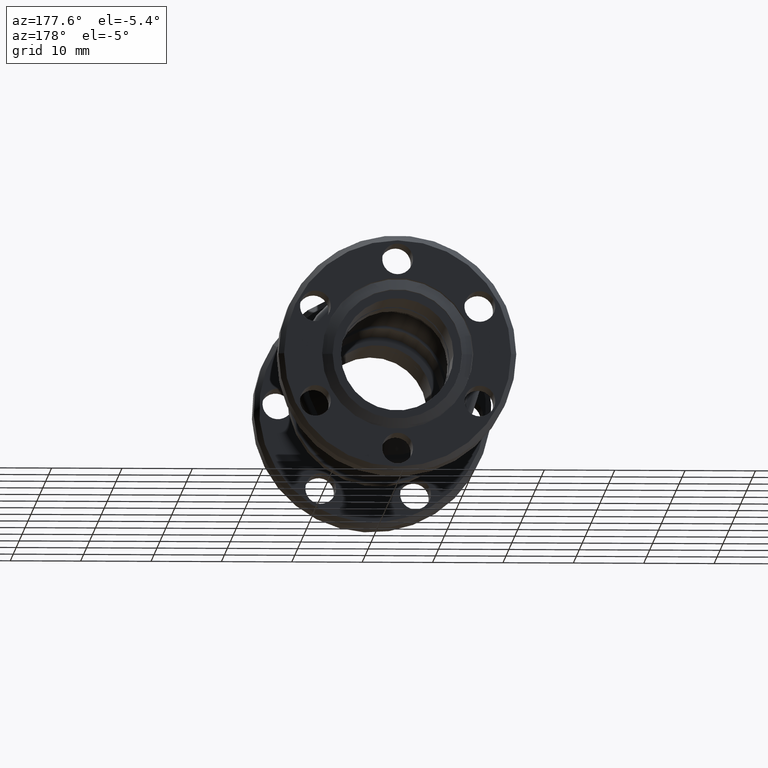
[diagram: clean part render]
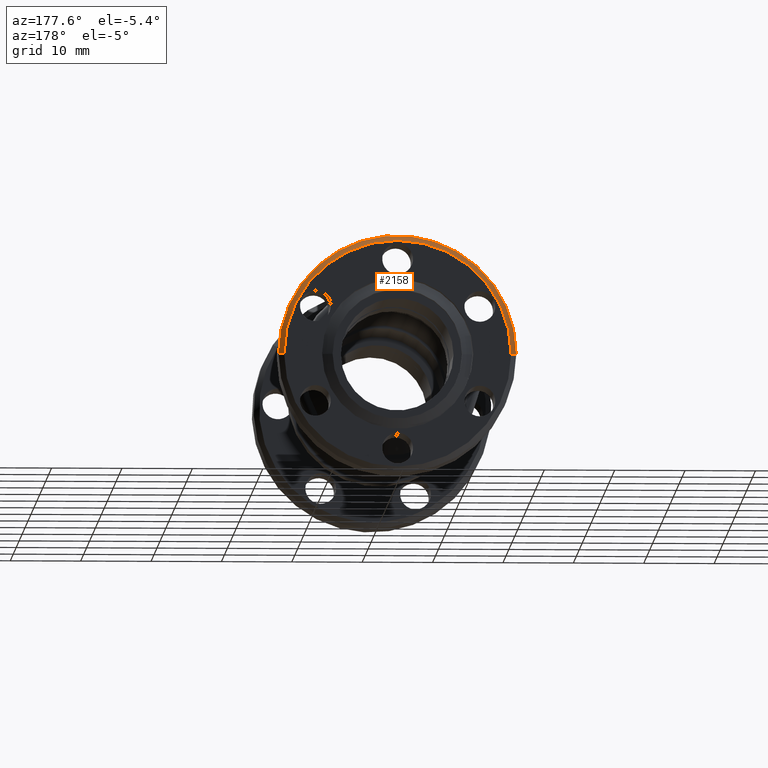
[diagram: same view with one face highlighted and labeled with its STEP entity id]
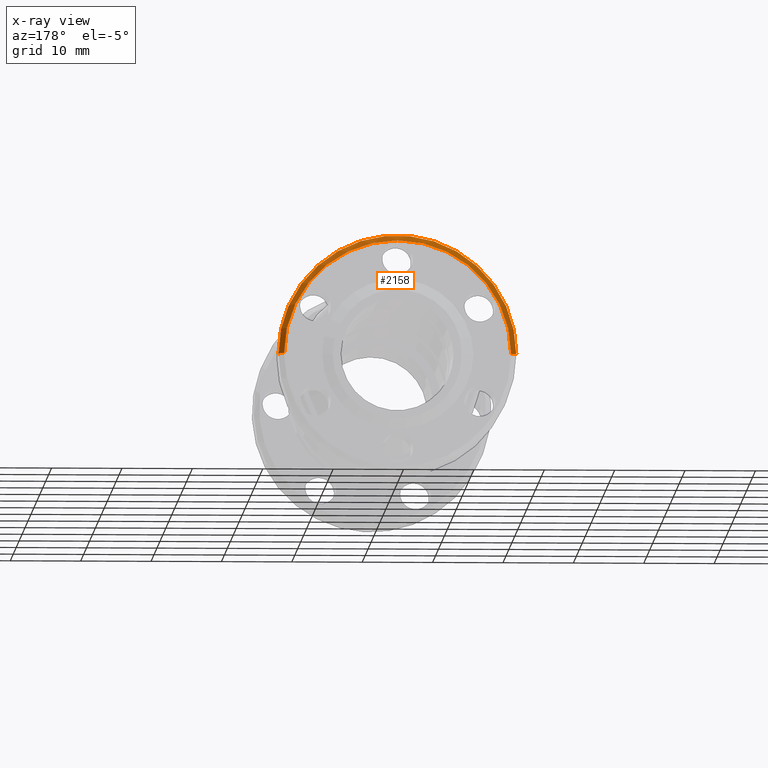
[diagram: x-ray of the same camera — body ghosted, the highlighted face saturated]
A machine part, auxiliary view. The second image highlights one B-rep face of the part: STEP entity #2158.
The next image is the same camera in x-ray: the body ghosted, the highlighted face saturated — about 0% of this face is hidden behind the body in this view.
In plain terms, the highlighted conical surface has half-angle 45 deg.
Its self-contained STEP definition (entity closure, byte-faithful):
#100 = LINE ( 'NONE', #2107, #855 ) ;
#136 = CARTESIAN_POINT ( 'NONE',  ( -0.6650000000000000355, -0.03000000000000017236, 8.143901214329899284E-17 ) ) ;
#140 = DIRECTION ( 'NONE',  ( 1.224646799147352221E-16, -1.000000000000000000, 0.0000000000000000000 ) ) ;
#172 = DIRECTION ( 'NONE',  ( -1.224646799147352221E-16, 1.000000000000000000, -0.0000000000000000000 ) ) ;
#260 = CARTESIAN_POINT ( 'NONE',  ( -0.6349999999999998979, -1.460612715874634479E-16, 7.960204194457795477E-17 ) ) ;
#294 = AXIS2_PLACEMENT_3D ( 'NONE', #1982, #140, #1474 ) ;
#426 = EDGE_CURVE ( 'NONE', #2492, #2475, #100, .T. ) ;
#550 = EDGE_CURVE ( 'NONE', #2475, #2965, #1539, .T. ) ;
#707 = ORIENTED_EDGE ( 'NONE', *, *, #2146, .F. ) ;
#790 = AXIS2_PLACEMENT_3D ( 'NONE', #2486, #172, #1209 ) ;
#855 = VECTOR ( 'NONE', #2634, 39.37007874015748143 ) ;
#917 = CARTESIAN_POINT ( 'NONE',  ( 0.6349999999999998979, 9.468871904250276149E-18, 0.0000000000000000000 ) ) ;
#1111 = ORIENTED_EDGE ( 'NONE', *, *, #2911, .F. ) ;
#1209 = DIRECTION ( 'NONE',  ( -1.000000000000000000, -1.219574997171546080E-16, 0.0000000000000000000 ) ) ;
#1213 = DIRECTION ( 'NONE',  ( 0.7071067811865484609, -0.7071067811865465735, 0.0000000000000000000 ) ) ;
#1253 = AXIS2_PLACEMENT_3D ( 'NONE', #2998, #1690, #1404 ) ;
#1395 = VERTEX_POINT ( 'NONE', #917 ) ;
#1404 = DIRECTION ( 'NONE',  ( -1.000000000000000000, -1.224646799147352221E-16, 0.0000000000000000000 ) ) ;
#1474 = DIRECTION ( 'NONE',  ( 1.000000000000000000, 1.219574997171546080E-16, 0.0000000000000000000 ) ) ;
#1539 = CIRCLE ( 'NONE', #790, 0.6650000000000000355 ) ;
#1659 = CARTESIAN_POINT ( 'NONE',  ( 0.6650000000000000355, -0.03000000000000000930, 0.0000000000000000000 ) ) ;
#1690 = DIRECTION ( 'NONE',  ( -1.224646799147352221E-16, 1.000000000000000000, -0.0000000000000000000 ) ) ;
#1944 = CARTESIAN_POINT ( 'NONE',  ( 0.6650000000000000355, -0.03000000000000000930, 0.0000000000000000000 ) ) ;
#1982 = CARTESIAN_POINT ( 'NONE',  ( 5.265981236333615142E-17, -0.03000000000000008910, 0.0000000000000000000 ) ) ;
#2107 = CARTESIAN_POINT ( 'NONE',  ( -0.6650000000000000355, -0.03000000000000017236, 8.143901214329899284E-17 ) ) ;
#2146 = EDGE_CURVE ( 'NONE', #1395, #2965, #3196, .T. ) ;
#2158 = ADVANCED_FACE ( 'NONE', ( #2251 ), #2510, .T. ) ;
#2183 = VECTOR ( 'NONE', #1213, 39.37007874015748143 ) ;
#2251 = FACE_OUTER_BOUND ( 'NONE', #2731, .T. ) ;
#2457 = ORIENTED_EDGE ( 'NONE', *, *, #550, .T. ) ;
#2475 = VERTEX_POINT ( 'NONE', #136 ) ;
#2486 = CARTESIAN_POINT ( 'NONE',  ( 5.265981236333615142E-17, -0.03000000000000008910, 0.0000000000000000000 ) ) ;
#2492 = VERTEX_POINT ( 'NONE', #260 ) ;
#2510 = CONICAL_SURFACE ( 'NONE', #294, 0.6650000000000000355, 0.7853981633974495002 ) ;
#2634 = DIRECTION ( 'NONE',  ( -0.7071067811865482389, -0.7071067811865467956, 8.659560562354942719E-17 ) ) ;
#2731 = EDGE_LOOP ( 'NONE', ( #1111, #2811, #2457, #707 ) ) ;
#2811 = ORIENTED_EDGE ( 'NONE', *, *, #426, .T. ) ;
#2911 = EDGE_CURVE ( 'NONE', #2492, #1395, #3305, .T. ) ;
#2965 = VERTEX_POINT ( 'NONE', #1944 ) ;
#2998 = CARTESIAN_POINT ( 'NONE',  ( 4.898587196589409377E-17, -6.829619984160658046E-17, 0.0000000000000000000 ) ) ;
#3196 = LINE ( 'NONE', #1659, #2183 ) ;
#3305 = CIRCLE ( 'NONE', #1253, 0.6349999999999998979 ) ;